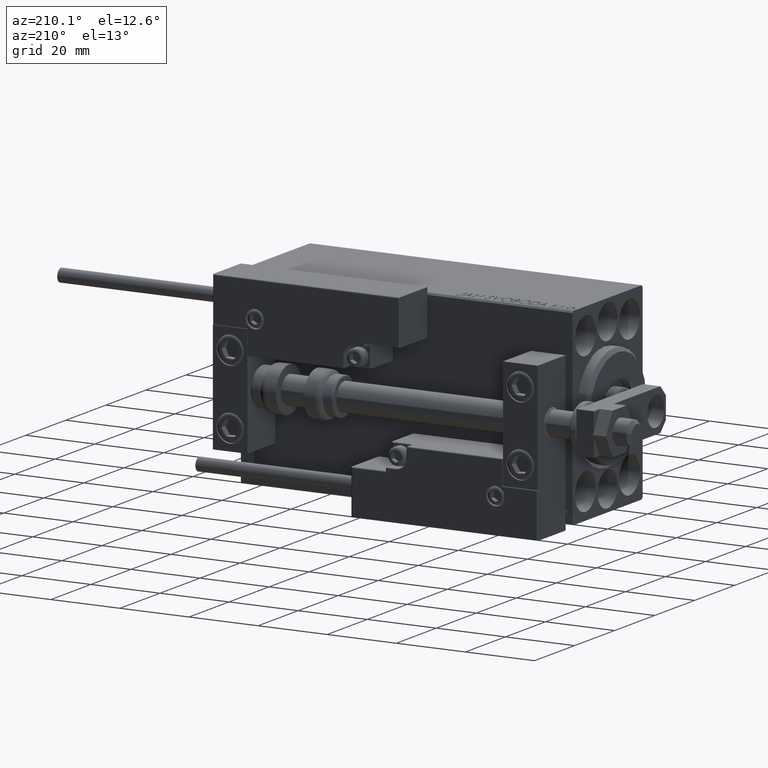
[diagram: clean part render]
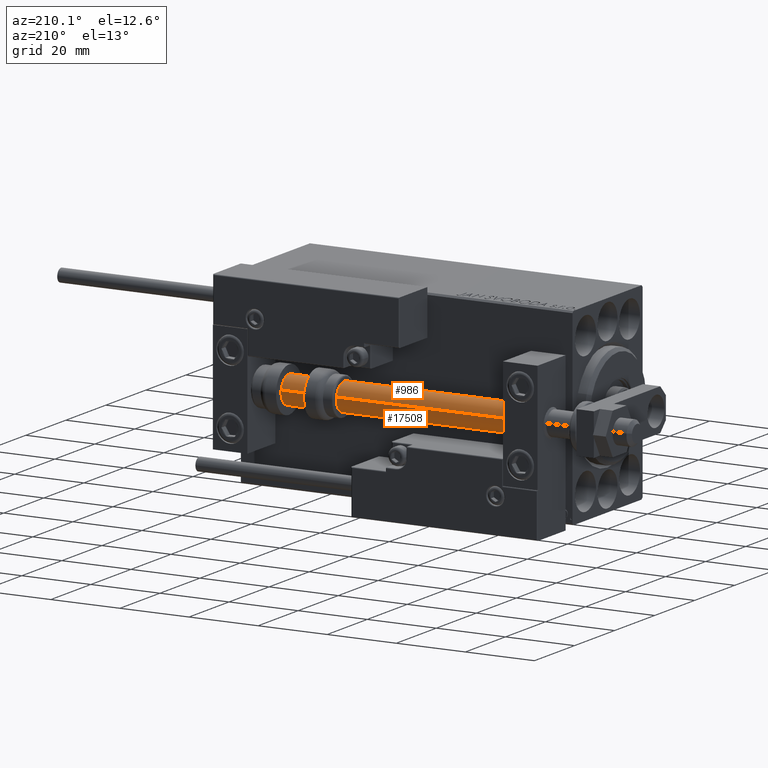
[diagram: same view with one multi-face feature highlighted, each face labeled with its STEP entity id]
A machine part, auxiliary view. The highlighted faces form ONE feature: a constant-radius fillet chain: 2 tangent blend faces with common blend radius 4 mm. The faces share edges in the B-rep.
Their STEP definitions:
[1] entity #17508 (Cylinder):
#3 = LINE ( 'NONE', #3565, #15791 ) ;
#684 = CIRCLE ( 'NONE', #13661, 4.000000000000000000 ) ;
#1236 = CARTESIAN_POINT ( 'NONE',  ( -4.000000000000000000, 0.000000000000000000, 96.00000000000000000 ) ) ;
#3469 = CARTESIAN_POINT ( 'NONE',  ( 4.000000000000000000, 4.898587196589412829E-16, 96.00000000000000000 ) ) ;
#3565 = CARTESIAN_POINT ( 'NONE',  ( -4.000000000000000000, 0.000000000000000000, 96.00000000000000000 ) ) ;
#3613 = EDGE_CURVE ( 'NONE', #46386, #43724, #3, .T. ) ;
#5854 = CARTESIAN_POINT ( 'NONE',  ( -4.000000000000000000, 0.000000000000000000, 2.000000000000029310 ) ) ;
#6051 = CARTESIAN_POINT ( 'NONE',  ( 0.000000000000000000, 0.000000000000000000, 96.00000000000000000 ) ) ;
#6218 = CARTESIAN_POINT ( 'NONE',  ( 4.000000000000000000, 4.898587196589412829E-16, 96.00000000000000000 ) ) ;
#6550 = FACE_OUTER_BOUND ( 'NONE', #34238, .T. ) ;
#6606 = DIRECTION ( 'NONE',  ( -0.000000000000000000, -0.000000000000000000, -1.000000000000000000 ) ) ;
#10320 = DIRECTION ( 'NONE',  ( -0.000000000000000000, -0.000000000000000000, -1.000000000000000000 ) ) ;
#10360 = DIRECTION ( 'NONE',  ( -1.000000000000000000, 0.000000000000000000, 0.000000000000000000 ) ) ;
#11015 = DIRECTION ( 'NONE',  ( 0.000000000000000000, 0.000000000000000000, 1.000000000000000000 ) ) ;
#11735 = AXIS2_PLACEMENT_3D ( 'NONE', #6051, #40783, #10360 ) ;
#13106 = CARTESIAN_POINT ( 'NONE',  ( 0.000000000000000000, 0.000000000000000000, 2.000000000000029310 ) ) ;
#13661 = AXIS2_PLACEMENT_3D ( 'NONE', #13106, #28324, #43776 ) ;
#14082 = DIRECTION ( 'NONE',  ( 1.000000000000000000, 0.000000000000000000, 0.000000000000000000 ) ) ;
#14418 = CYLINDRICAL_SURFACE ( 'NONE', #11735, 4.000000000000000000 ) ;
#15791 = VECTOR ( 'NONE', #6606, 1000.000000000000000 ) ;
#17443 = ORIENTED_EDGE ( 'NONE', *, *, #21457, .F. ) ;
#17508 = ADVANCED_FACE ( 'NONE', ( #6550 ), #14418, .T. ) ;
#18245 = ORIENTED_EDGE ( 'NONE', *, *, #45187, .T. ) ;
#21457 = EDGE_CURVE ( 'NONE', #46386, #36240, #47469, .T. ) ;
#22960 = EDGE_CURVE ( 'NONE', #36240, #46941, #45039, .T. ) ;
#25369 = ORIENTED_EDGE ( 'NONE', *, *, #22960, .F. ) ;
#26475 = VECTOR ( 'NONE', #10320, 1000.000000000000000 ) ;
#28324 = DIRECTION ( 'NONE',  ( -0.000000000000000000, -0.000000000000000000, 1.000000000000000000 ) ) ;
#34238 = EDGE_LOOP ( 'NONE', ( #25369, #17443, #41745, #18245 ) ) ;
#36240 = VERTEX_POINT ( 'NONE', #6218 ) ;
#40783 = DIRECTION ( 'NONE',  ( -0.000000000000000000, -0.000000000000000000, -1.000000000000000000 ) ) ;
#41745 = ORIENTED_EDGE ( 'NONE', *, *, #3613, .T. ) ;
#43724 = VERTEX_POINT ( 'NONE', #5854 ) ;
#43776 = DIRECTION ( 'NONE',  ( 1.000000000000000000, 0.000000000000000000, 0.000000000000000000 ) ) ;
#45020 = AXIS2_PLACEMENT_3D ( 'NONE', #49810, #11015, #14082 ) ;
#45039 = LINE ( 'NONE', #3469, #26475 ) ;
#45187 = EDGE_CURVE ( 'NONE', #43724, #46941, #684, .T. ) ;
#46386 = VERTEX_POINT ( 'NONE', #1236 ) ;
#46941 = VERTEX_POINT ( 'NONE', #49817 ) ;
#47469 = CIRCLE ( 'NONE', #45020, 4.000000000000000000 ) ;
#49810 = CARTESIAN_POINT ( 'NONE',  ( 0.000000000000000000, 0.000000000000000000, 96.00000000000000000 ) ) ;
#49817 = CARTESIAN_POINT ( 'NONE',  ( 4.000000000000000000, 4.898587196589412829E-16, 2.000000000000029310 ) ) ;
[2] entity #986 (Cylinder):
#3 = LINE ( 'NONE', #3565, #15791 ) ;
#186 = DIRECTION ( 'NONE',  ( -0.000000000000000000, -0.000000000000000000, 1.000000000000000000 ) ) ;
#986 = ADVANCED_FACE ( 'NONE', ( #1140 ), #5194, .T. ) ;
#1140 = FACE_OUTER_BOUND ( 'NONE', #16075, .T. ) ;
#1236 = CARTESIAN_POINT ( 'NONE',  ( -4.000000000000000000, 0.000000000000000000, 96.00000000000000000 ) ) ;
#1895 = DIRECTION ( 'NONE',  ( -0.000000000000000000, -0.000000000000000000, -1.000000000000000000 ) ) ;
#3382 = ORIENTED_EDGE ( 'NONE', *, *, #22960, .T. ) ;
#3469 = CARTESIAN_POINT ( 'NONE',  ( 4.000000000000000000, 4.898587196589412829E-16, 96.00000000000000000 ) ) ;
#3565 = CARTESIAN_POINT ( 'NONE',  ( -4.000000000000000000, 0.000000000000000000, 96.00000000000000000 ) ) ;
#3613 = EDGE_CURVE ( 'NONE', #46386, #43724, #3, .T. ) ;
#5194 = CYLINDRICAL_SURFACE ( 'NONE', #41673, 4.000000000000000000 ) ;
#5854 = CARTESIAN_POINT ( 'NONE',  ( -4.000000000000000000, 0.000000000000000000, 2.000000000000029310 ) ) ;
#6218 = CARTESIAN_POINT ( 'NONE',  ( 4.000000000000000000, 4.898587196589412829E-16, 96.00000000000000000 ) ) ;
#6606 = DIRECTION ( 'NONE',  ( -0.000000000000000000, -0.000000000000000000, -1.000000000000000000 ) ) ;
#8752 = CARTESIAN_POINT ( 'NONE',  ( 0.000000000000000000, 0.000000000000000000, 96.00000000000000000 ) ) ;
#8802 = AXIS2_PLACEMENT_3D ( 'NONE', #26829, #186, #46837 ) ;
#10320 = DIRECTION ( 'NONE',  ( -0.000000000000000000, -0.000000000000000000, -1.000000000000000000 ) ) ;
#11887 = ORIENTED_EDGE ( 'NONE', *, *, #45144, .T. ) ;
#15791 = VECTOR ( 'NONE', #6606, 1000.000000000000000 ) ;
#16075 = EDGE_LOOP ( 'NONE', ( #48129, #3382, #11887, #35710 ) ) ;
#17059 = DIRECTION ( 'NONE',  ( 0.000000000000000000, 0.000000000000000000, 1.000000000000000000 ) ) ;
#22960 = EDGE_CURVE ( 'NONE', #36240, #46941, #45039, .T. ) ;
#23120 = EDGE_CURVE ( 'NONE', #36240, #46386, #49164, .T. ) ;
#26475 = VECTOR ( 'NONE', #10320, 1000.000000000000000 ) ;
#26829 = CARTESIAN_POINT ( 'NONE',  ( 0.000000000000000000, 0.000000000000000000, 2.000000000000029310 ) ) ;
#35710 = ORIENTED_EDGE ( 'NONE', *, *, #3613, .F. ) ;
#36240 = VERTEX_POINT ( 'NONE', #6218 ) ;
#36304 = CARTESIAN_POINT ( 'NONE',  ( 0.000000000000000000, 0.000000000000000000, 96.00000000000000000 ) ) ;
#37238 = DIRECTION ( 'NONE',  ( 1.000000000000000000, 0.000000000000000000, 0.000000000000000000 ) ) ;
#40424 = DIRECTION ( 'NONE',  ( -1.000000000000000000, 0.000000000000000000, 0.000000000000000000 ) ) ;
#41673 = AXIS2_PLACEMENT_3D ( 'NONE', #8752, #1895, #40424 ) ;
#42666 = AXIS2_PLACEMENT_3D ( 'NONE', #36304, #17059, #37238 ) ;
#43724 = VERTEX_POINT ( 'NONE', #5854 ) ;
#45039 = LINE ( 'NONE', #3469, #26475 ) ;
#45144 = EDGE_CURVE ( 'NONE', #46941, #43724, #48474, .T. ) ;
#46386 = VERTEX_POINT ( 'NONE', #1236 ) ;
#46837 = DIRECTION ( 'NONE',  ( 1.000000000000000000, 0.000000000000000000, 0.000000000000000000 ) ) ;
#46941 = VERTEX_POINT ( 'NONE', #49817 ) ;
#48129 = ORIENTED_EDGE ( 'NONE', *, *, #23120, .F. ) ;
#48474 = CIRCLE ( 'NONE', #8802, 4.000000000000000000 ) ;
#49164 = CIRCLE ( 'NONE', #42666, 4.000000000000000000 ) ;
#49817 = CARTESIAN_POINT ( 'NONE',  ( 4.000000000000000000, 4.898587196589412829E-16, 2.000000000000029310 ) ) ;